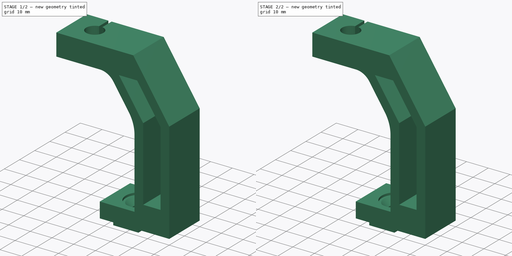
[diagram: build sequence overview — one tinted view per stage of 2, left to right]
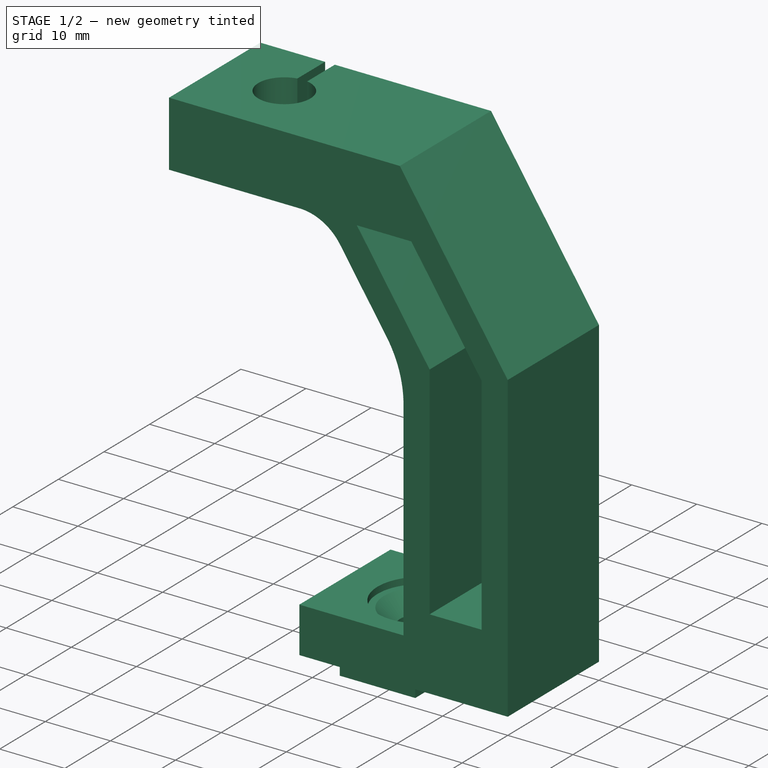
[diagram: stage 1 of 2 — iso view after this stage's code; geometry added in this stage tinted green]
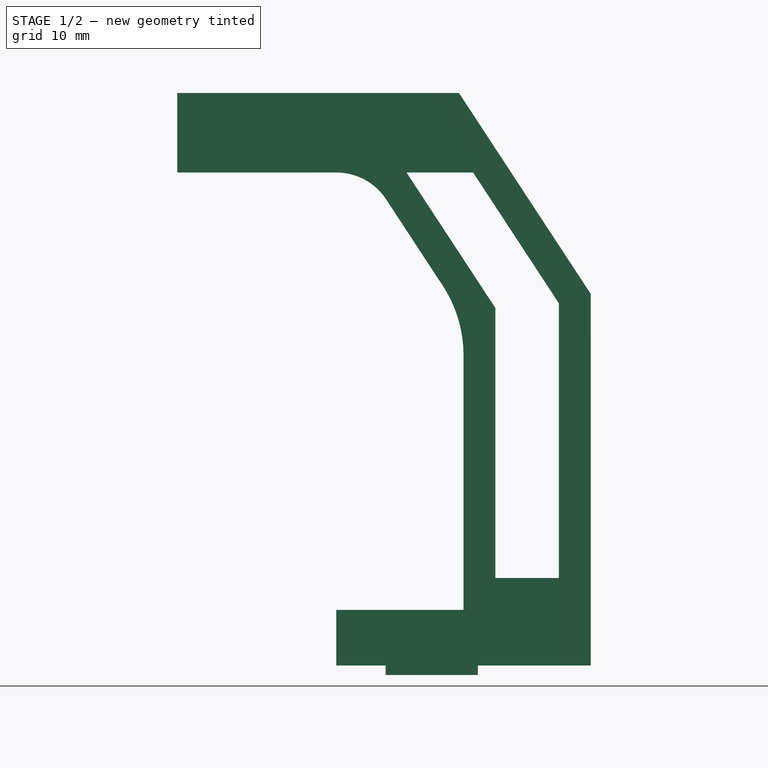
[diagram: stage 1 of 2 — front view after this stage's code; geometry added in this stage tinted green]
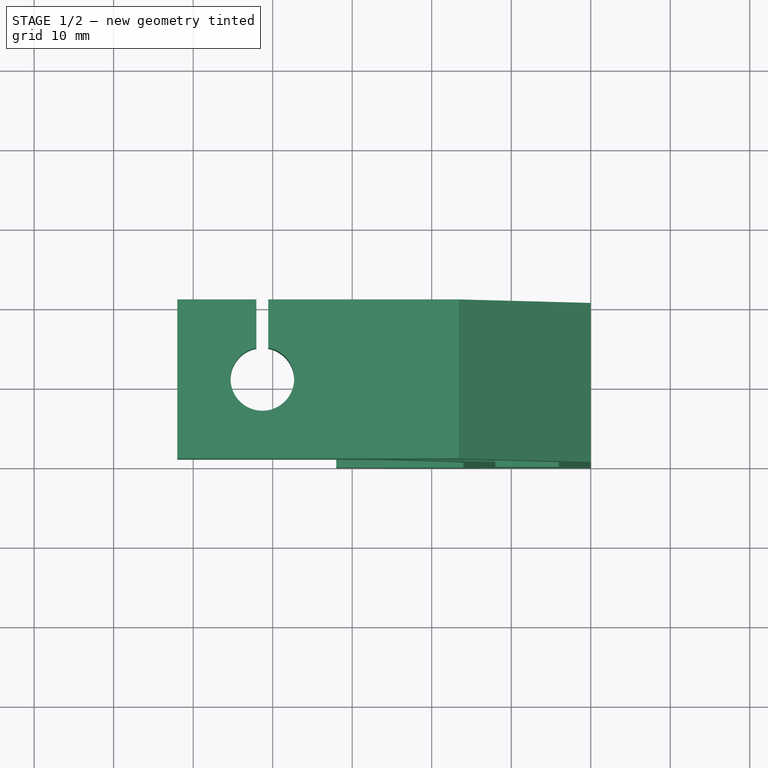
[diagram: stage 1 of 2 — top view after this stage's code; geometry added in this stage tinted green]
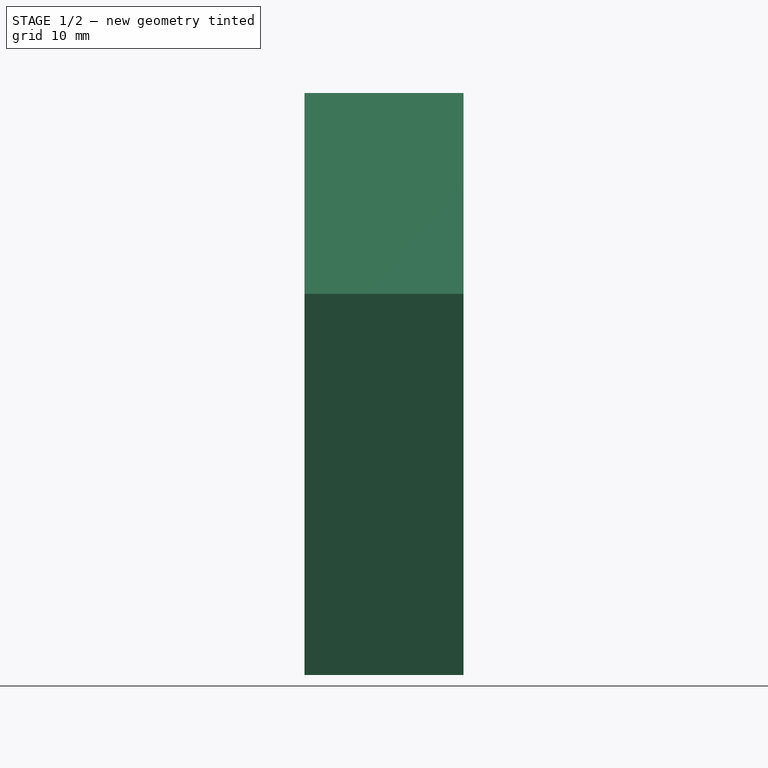
[diagram: stage 1 of 2 — right view after this stage's code; geometry added in this stage tinted green]
FCSTD DOCUMENT  (FreeCAD 0.17R10495 (Git))
Label: ztop_es
License: All rights reserved
LicenseURL: http://en.wikipedia.org/wiki/All_rights_reserved
objects: Sketcher::SketchObject×2, PartDesign::Pocket×2, Part::Feature×1, Part::Compound×1, PartDesign::ShapeBinder×1, PartDesign::Body×1
note: 10 computed .brp shape members not serialized (recipe doc carries the construction recipe); baked Part::Feature solids carry a one-line shape summary decoded from their .brp

FEATURE [PartDesign::ShapeBinder] CopyPart__Feature
FEATURE [Sketcher::SketchObject] Sketch
  MapMode = 5
  Placement = pos=(-32,0,0) rot=(0.57735,-0.57735,-0.57735;2.0944rad)
  Support = -> [CopyPart__Feature]
  sketch-geometry (1):
    g0: Circle CenterX=-7 CenterY=31 CenterZ=0 NormalX=0 NormalY=0 NormalZ=1 Radius=1.25
  constraints (3):
    c: DistanceY(g-1,g0) = 31
    c: DistanceX(g0,g-1) = 7
    c: Radius(g0) = 1.25
FEATURE [PartDesign::Pocket] Pocket
  BaseFeature = -> Part__Feature
  Length = 25
  Profile = -> Sketch
  Type = 0
FEATURE [Sketcher::SketchObject] Sketch001
  ExternalGeometry = -> [Pocket]
  MapMode = 5
  Placement = pos=(-32,0,0) rot=(0.57735,-0.57735,-0.57735;2.0944rad)
  Support = -> [Pocket]
  sketch-geometry (1):
    g0: Circle CenterX=-7 CenterY=31 CenterZ=0 NormalX=0 NormalY=0 NormalZ=1 Radius=1.55
  constraints (2):
    c: Coincident(g0,g-3)
    c: Radius(g0) = 1.55
FEATURE [PartDesign::Pocket] Pocket001
  BaseFeature = -> Pocket
  Length = 11
  Profile = -> Sketch001
  Type = 0
FEATURE [PartDesign::Body] Body
  BaseFeature = -> Part__Feature
  Group = -> [CopyPart__Feature,Sketch,Pocket,Sketch001,Pocket001]
  Origin = -> BodyOrigin
  Tip = -> Pocket001
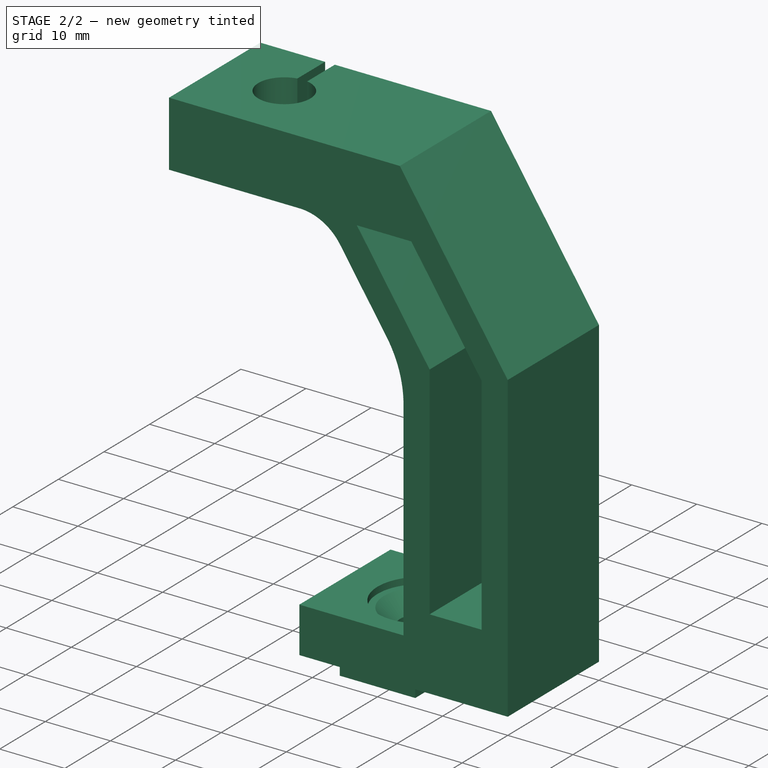
[diagram: stage 2 of 2 — iso view after this stage's code; geometry added in this stage tinted green]
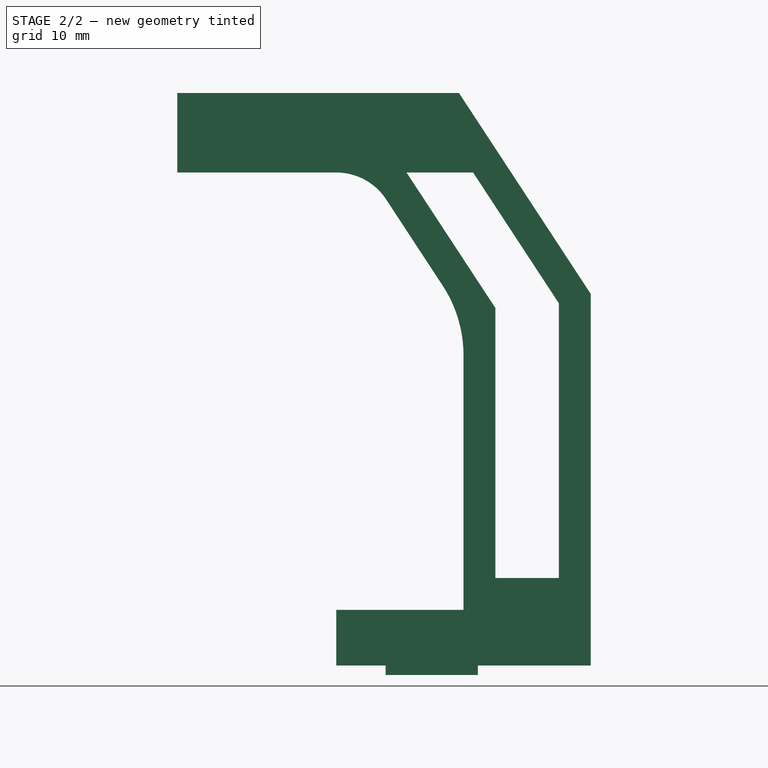
[diagram: stage 2 of 2 — front view after this stage's code; geometry added in this stage tinted green]
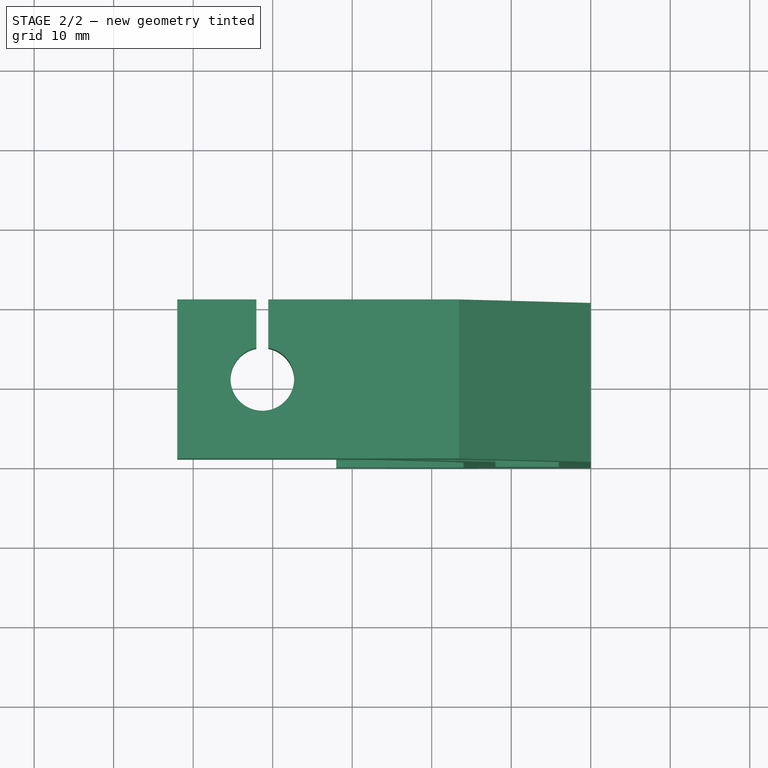
[diagram: stage 2 of 2 — top view after this stage's code; geometry added in this stage tinted green]
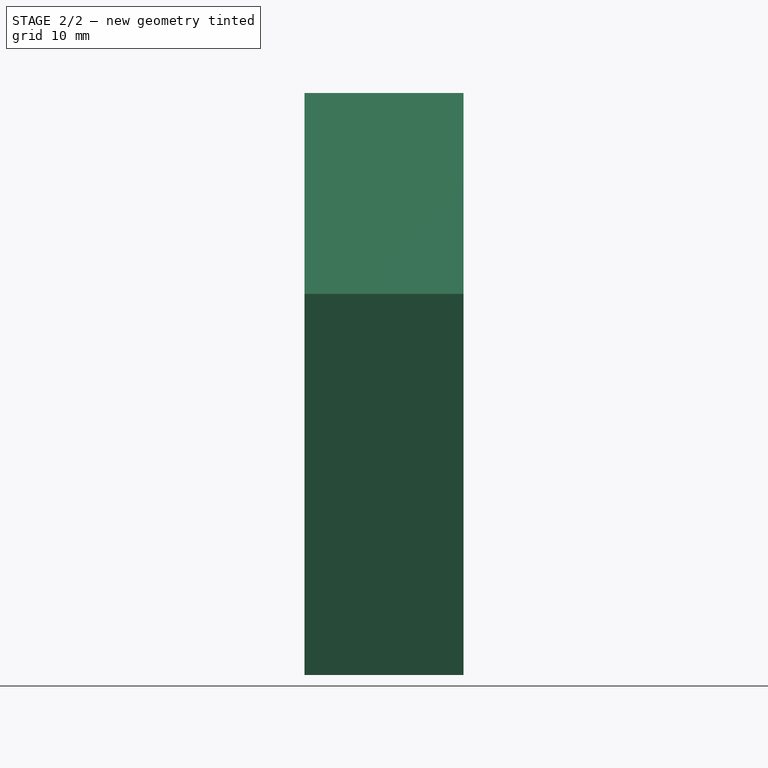
[diagram: stage 2 of 2 — right view after this stage's code; geometry added in this stage tinted green]
FEATURE [Part::Feature] Part__Feature  label="Chamfer"
  shape: bbox 52 x 20 x 73.2 mm, 41 faces (baked)
FEATURE [Part::Compound] ASSEMBLY
  Links = -> [Part__Feature]
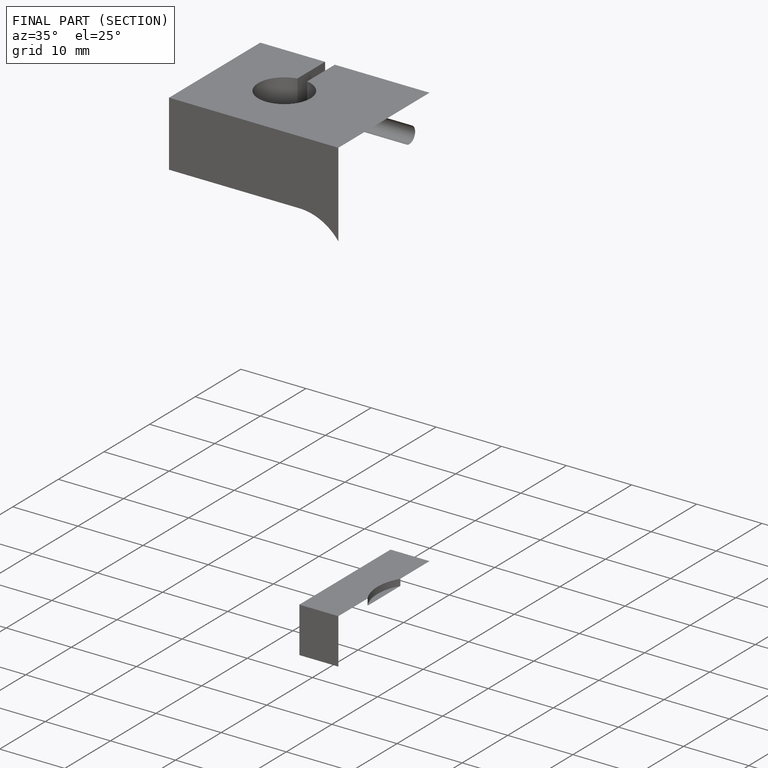
[diagram: finished part — half-section view (interior)]
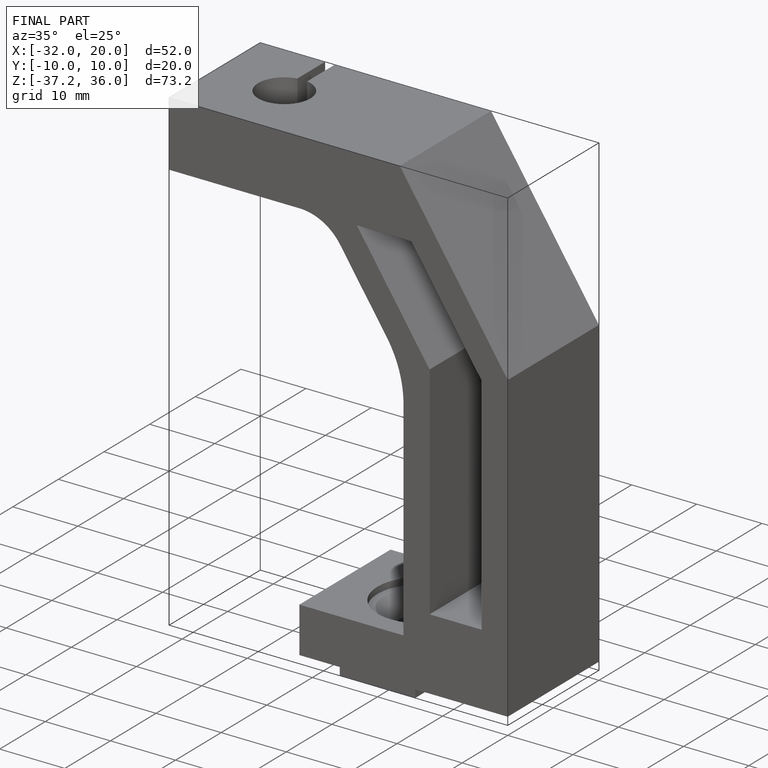
[diagram: finished part — iso view with bounding-box wireframe]
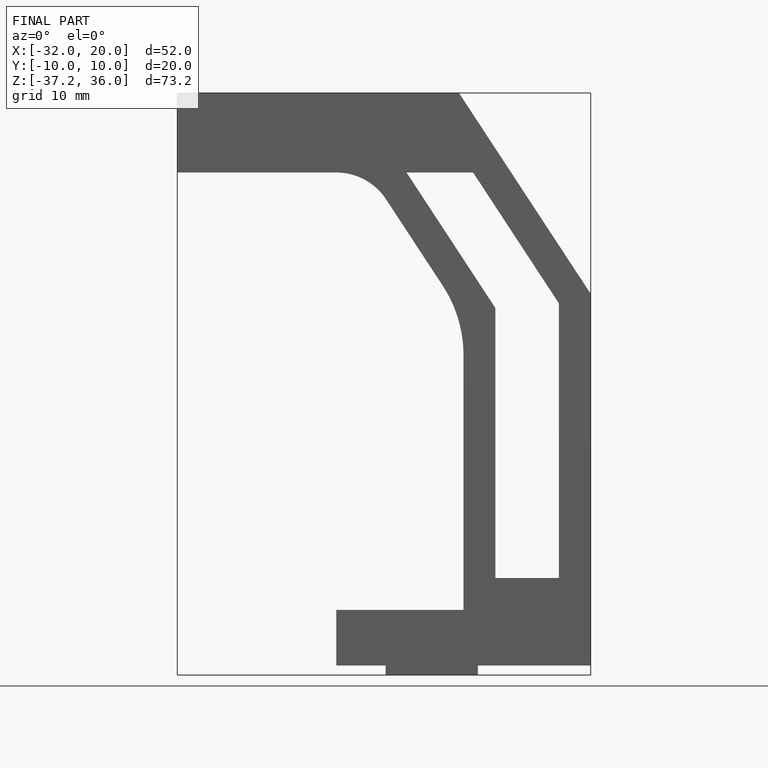
[diagram: finished part — front view with bounding-box wireframe]
